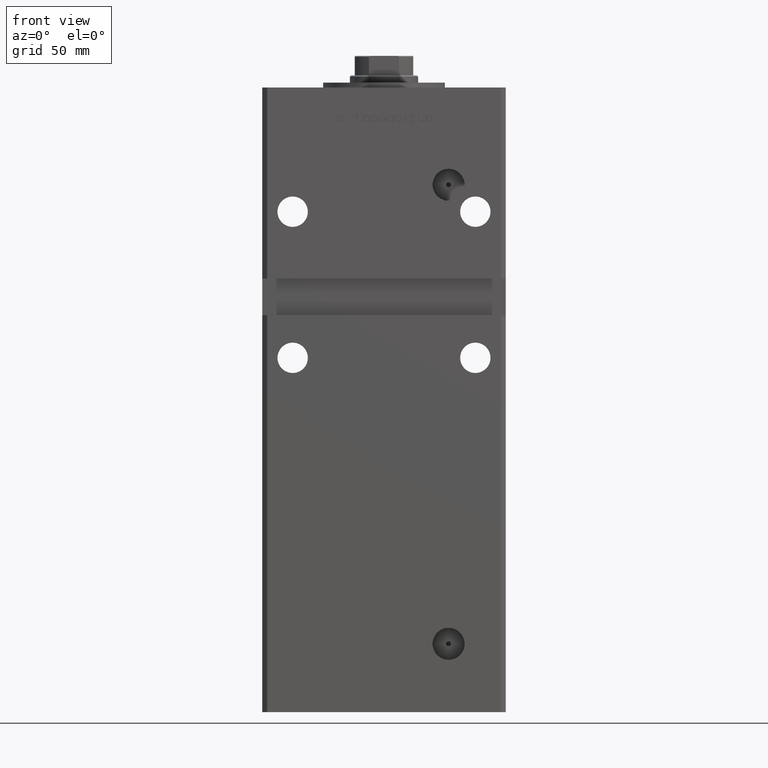
[diagram: clean part render]
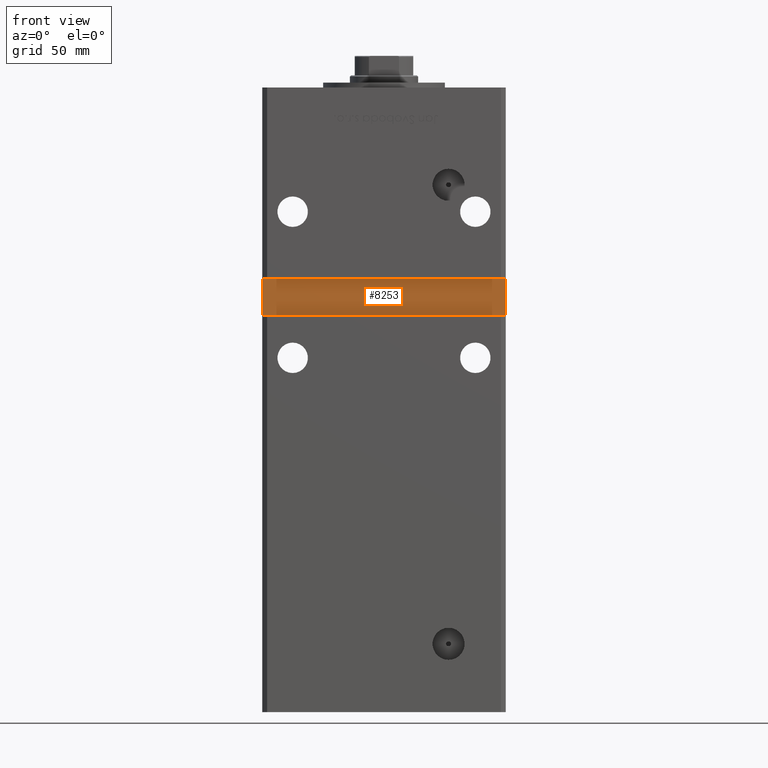
[diagram: same view with one face highlighted and labeled with its STEP entity id]
A machine part, front view. The second image highlights one B-rep face of the part: STEP entity #8253.
In plain terms, the highlighted planar face has unit normal (0, -1, 0).
Its self-contained STEP definition (entity closure, byte-faithful):
#43 = VERTEX_POINT ( 'NONE', #21254 ) ;
#322 = FACE_OUTER_BOUND ( 'NONE', #9844, .T. ) ;
#823 = CARTESIAN_POINT ( 'NONE',  ( -49.99999999999998579, -38.50000000000000000, 159.0000000000000000 ) ) ;
#1693 = LINE ( 'NONE', #34778, #34562 ) ;
#1883 = EDGE_CURVE ( 'NONE', #4985, #43, #1693, .T. ) ;
#4985 = VERTEX_POINT ( 'NONE', #45570 ) ;
#8253 = ADVANCED_FACE ( 'NONE', ( #322 ), #12158, .T. ) ;
#9844 = EDGE_LOOP ( 'NONE', ( #10249, #34493, #13474, #32192 ) ) ;
#10163 = CARTESIAN_POINT ( 'NONE',  ( -49.99999999999998579, -38.50000000000000000, 144.0000000000000284 ) ) ;
#10249 = ORIENTED_EDGE ( 'NONE', *, *, #1883, .T. ) ;
#12158 = PLANE ( 'NONE',  #50025 ) ;
#13474 = ORIENTED_EDGE ( 'NONE', *, *, #40900, .T. ) ;
#16759 = CARTESIAN_POINT ( 'NONE',  ( -49.99999999999998579, -38.50000000000000000, 159.0000000000000000 ) ) ;
#17143 = DIRECTION ( 'NONE',  ( -1.000000000000000000, -0.000000000000000000, -0.000000000000000000 ) ) ;
#17692 = LINE ( 'NONE', #38939, #40129 ) ;
#17752 = EDGE_CURVE ( 'NONE', #21428, #4985, #33836, .T. ) ;
#21254 = CARTESIAN_POINT ( 'NONE',  ( 49.99999999999998579, -38.50000000000000000, 159.0000000000000000 ) ) ;
#21428 = VERTEX_POINT ( 'NONE', #37092 ) ;
#25360 = LINE ( 'NONE', #16759, #45240 ) ;
#26555 = DIRECTION ( 'NONE',  ( 1.000000000000000000, 0.000000000000000000, 0.000000000000000000 ) ) ;
#29129 = DIRECTION ( 'NONE',  ( 0.000000000000000000, 0.000000000000000000, -1.000000000000000000 ) ) ;
#32192 = ORIENTED_EDGE ( 'NONE', *, *, #17752, .T. ) ;
#33645 = CARTESIAN_POINT ( 'NONE',  ( 0.000000000000000000, -38.50000000000000000, 0.000000000000000000 ) ) ;
#33836 = LINE ( 'NONE', #10163, #41246 ) ;
#33978 = DIRECTION ( 'NONE',  ( -0.000000000000000000, -0.000000000000000000, 1.000000000000000000 ) ) ;
#34493 = ORIENTED_EDGE ( 'NONE', *, *, #42130, .T. ) ;
#34562 = VECTOR ( 'NONE', #33978, 1000.000000000000000 ) ;
#34778 = CARTESIAN_POINT ( 'NONE',  ( 49.99999999999998579, -38.50000000000000000, 159.0000000000000000 ) ) ;
#37092 = CARTESIAN_POINT ( 'NONE',  ( -49.99999999999998579, -38.50000000000000000, 144.0000000000000284 ) ) ;
#38939 = CARTESIAN_POINT ( 'NONE',  ( -49.99999999999998579, -38.50000000000000000, 159.0000000000000000 ) ) ;
#40129 = VECTOR ( 'NONE', #17143, 1000.000000000000000 ) ;
#40900 = EDGE_CURVE ( 'NONE', #42702, #21428, #25360, .T. ) ;
#41246 = VECTOR ( 'NONE', #26555, 1000.000000000000000 ) ;
#41706 = DIRECTION ( 'NONE',  ( 0.000000000000000000, -0.000000000000000000, -1.000000000000000000 ) ) ;
#42130 = EDGE_CURVE ( 'NONE', #43, #42702, #17692, .T. ) ;
#42702 = VERTEX_POINT ( 'NONE', #823 ) ;
#45240 = VECTOR ( 'NONE', #29129, 1000.000000000000000 ) ;
#45570 = CARTESIAN_POINT ( 'NONE',  ( 49.99999999999998579, -38.49999999999999289, 144.0000000000000284 ) ) ;
#49755 = DIRECTION ( 'NONE',  ( 0.000000000000000000, -1.000000000000000000, 0.000000000000000000 ) ) ;
#50025 = AXIS2_PLACEMENT_3D ( 'NONE', #33645, #49755, #41706 ) ;